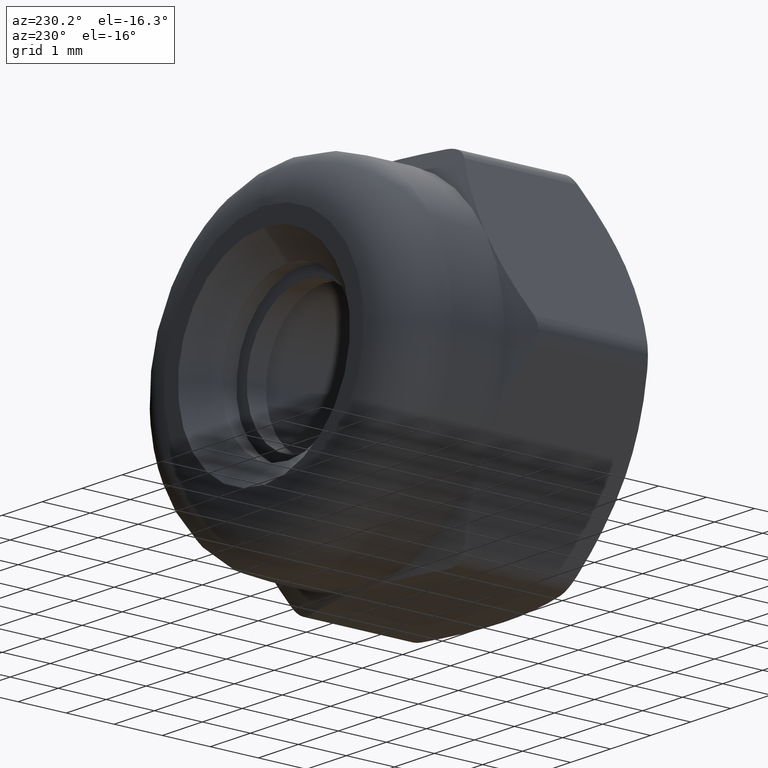
[diagram: clean part render]
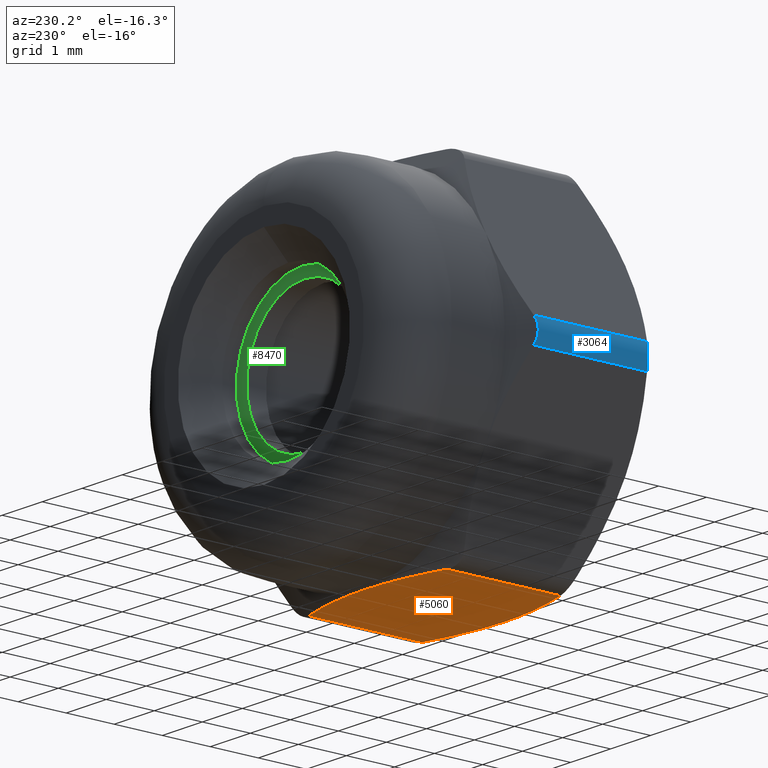
[diagram: same view with three faces highlighted in distinct colors, each labeled with its STEP entity id]
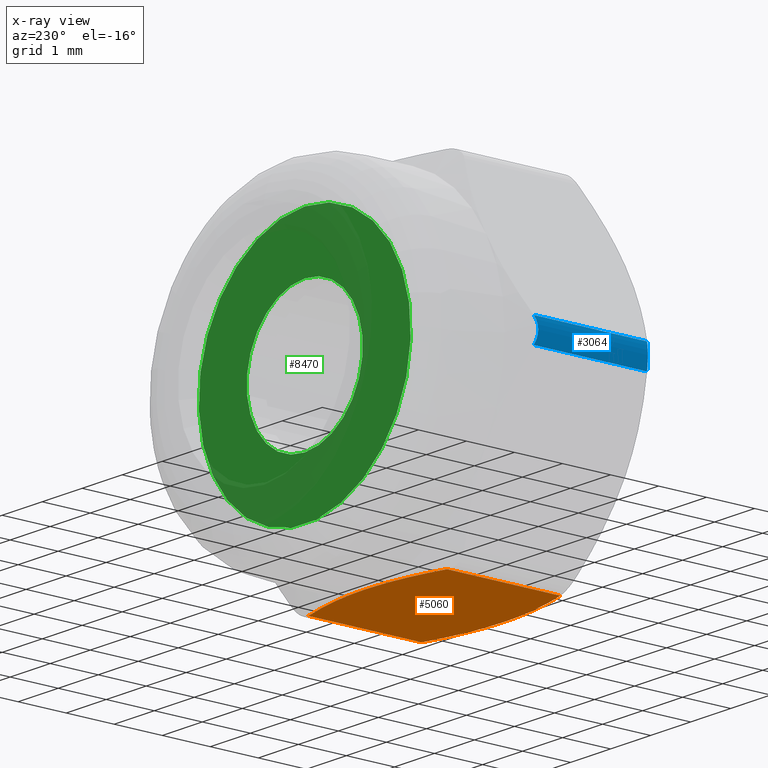
[diagram: x-ray of the same camera — body ghosted, the three highlighted faces saturated]
A machine part, auxiliary view with three faces highlighted in distinct colors.
The next image is the same camera in x-ray (body ghosted, the three faces saturated) — at least one of them is partly hidden behind the body in this view.
Their STEP definitions:

[orange] entity #5060 — the highlighted planar face has unit normal (0, -0, 1).
#16 = VECTOR ( 'NONE', #1610, 1000.000000000000000 ) ;
#62 = FACE_OUTER_BOUND ( 'NONE', #15075, .T. ) ;
#146 = VERTEX_POINT ( 'NONE', #7037 ) ;
#253 = ORIENTED_EDGE ( 'NONE', *, *, #522, .T. ) ;
#427 = CARTESIAN_POINT ( 'NONE',  ( 1.732050807568886297, 1.449999999999999956, -3.499999999999997780 ) ) ;
#522 = EDGE_CURVE ( 'NONE', #2744, #14837, #6635, .T. ) ;
#550 = CARTESIAN_POINT ( 'NONE',  ( 1.732050807568883410, -1.179916774697780779, -3.499999999999997780 ) ) ;
#1561 = B_SPLINE_CURVE_WITH_KNOTS ( 'NONE', 3,
 ( #13240, #5974, #3683, #14471, #4800, #8451 ),
 .UNSPECIFIED., .F., .F.,
 ( 4, 2, 4 ),
 ( 0.003893843636145335324, 0.004771886184709208355, 0.005649928733273081385 ),
 .UNSPECIFIED. ) ;
#1610 = DIRECTION ( 'NONE',  ( 0.000000000000000000, -1.000000000000000000, 0.000000000000000000 ) ) ;
#1994 = ORIENTED_EDGE ( 'NONE', *, *, #13333, .T. ) ;
#2048 = CARTESIAN_POINT ( 'NONE',  ( 1.732050807568883410, -1.179916774697780779, -3.499999999999997780 ) ) ;
#2092 = CARTESIAN_POINT ( 'NONE',  ( 1.452413815336378589, 1.262602219819400684, -3.499999999999997780 ) ) ;
#2391 = ORIENTED_EDGE ( 'NONE', *, *, #8789, .T. ) ;
#2631 = B_SPLINE_CURVE_WITH_KNOTS ( 'NONE', 3,
 ( #10388, #6689, #7920, #8014, #9159, #12844 ),
 .UNSPECIFIED., .F., .F.,
 ( 4, 2, 4 ),
 ( 0.01205306790077971535, 0.01293214004860088542, 0.01381121219642205550 ),
 .UNSPECIFIED. ) ;
#2744 = VERTEX_POINT ( 'NONE', #550 ) ;
#2956 = CARTESIAN_POINT ( 'NONE',  ( 0.5889775044330665121, 1.424624367612096876, -3.499999999999998224 ) ) ;
#3330 = CARTESIAN_POINT ( 'NONE',  ( 1.168569814788573913, 1.330529597243393258, -3.499999999999997780 ) ) ;
#3683 = CARTESIAN_POINT ( 'NONE',  ( -1.160929590594114824, 1.332090193559502866, -3.499999999999998224 ) ) ;
#3886 = CARTESIAN_POINT ( 'NONE',  ( -1.732050807568868755, 1.449999999999999956, -3.499999999999997780 ) ) ;
#4042 = VERTEX_POINT ( 'NONE', #10152 ) ;
#4611 = VERTEX_POINT ( 'NONE', #12935 ) ;
#4800 = CARTESIAN_POINT ( 'NONE',  ( -0.2930392331984196241, 1.450000000000000844, -3.499999999999997780 ) ) ;
#5060 = ADVANCED_FACE ( 'NONE', ( #62 ), #12188, .F. ) ;
#5401 = CARTESIAN_POINT ( 'NONE',  ( 0.000000000000000000, 1.449999999999999956, -3.500000000000000000 ) ) ;
#5616 = CARTESIAN_POINT ( 'NONE',  ( 1.452413815336378589, -1.262602219819400684, -3.499999999999998224 ) ) ;
#5974 = CARTESIAN_POINT ( 'NONE',  ( -1.448802245578631576, 1.263670119494017641, -3.499999999999998224 ) ) ;
#6108 = LINE ( 'NONE', #427, #16 ) ;
#6635 = B_SPLINE_CURVE_WITH_KNOTS ( 'NONE', 3,
 ( #2048, #5616, #6860, #9194, #7994, #12771 ),
 .UNSPECIFIED., .F., .F.,
 ( 4, 2, 4 ),
 ( 0.01030139614544786641, 0.01117723202311379088, 0.01205306790077971535 ),
 .UNSPECIFIED. ) ;
#6689 = CARTESIAN_POINT ( 'NONE',  ( -0.2930392331984202903, -1.450000000000001066, -3.499999999999998224 ) ) ;
#6860 = CARTESIAN_POINT ( 'NONE',  ( 1.168569814788574801, -1.330529597243394146, -3.499999999999998224 ) ) ;
#7037 = CARTESIAN_POINT ( 'NONE',  ( -1.732050807569855300, -1.179916774697493453, -3.499999999999997780 ) ) ;
#7093 = ORIENTED_EDGE ( 'NONE', *, *, #8216, .T. ) ;
#7228 = LINE ( 'NONE', #3886, #14461 ) ;
#7920 = CARTESIAN_POINT ( 'NONE',  ( -0.5837124141310827685, -1.425151664594819234, -3.499999999999998224 ) ) ;
#7994 = CARTESIAN_POINT ( 'NONE',  ( 0.2919604205809714914, -1.450000000000001066, -3.499999999999997780 ) ) ;
#8014 = CARTESIAN_POINT ( 'NONE',  ( -1.160929590594115046, -1.332090193559502866, -3.499999999999997780 ) ) ;
#8086 = VERTEX_POINT ( 'NONE', #11975 ) ;
#8216 = EDGE_CURVE ( 'NONE', #4611, #2744, #6108, .T. ) ;
#8451 = CARTESIAN_POINT ( 'NONE',  ( 0.000000000000000000, 1.449999999999999956, -3.500000000000000000 ) ) ;
#8789 = EDGE_CURVE ( 'NONE', #146, #4042, #7228, .T. ) ;
#9030 = CARTESIAN_POINT ( 'NONE',  ( 1.732050807568883410, 1.179916774697780779, -3.499999999999997780 ) ) ;
#9159 = CARTESIAN_POINT ( 'NONE',  ( -1.448802245578632020, -1.263670119494017419, -3.499999999999997780 ) ) ;
#9194 = CARTESIAN_POINT ( 'NONE',  ( 0.5889775044330658460, -1.424624367612096654, -3.499999999999997780 ) ) ;
#9864 = DIRECTION ( 'NONE',  ( -0.000000000000000000, 1.000000000000000000, -0.000000000000000000 ) ) ;
#10152 = CARTESIAN_POINT ( 'NONE',  ( -1.732050807569855744, 1.179916774697493231, -3.499999999999997780 ) ) ;
#10388 = CARTESIAN_POINT ( 'NONE',  ( 0.000000000000000000, -1.449999999999999956, -3.499999999999999556 ) ) ;
#10583 = CARTESIAN_POINT ( 'NONE',  ( 0.2919604205809721575, 1.450000000000001066, -3.499999999999998224 ) ) ;
#10736 = EDGE_CURVE ( 'NONE', #4042, #8086, #1561, .T. ) ;
#11073 = CARTESIAN_POINT ( 'NONE',  ( 2.020725942163698718, 1.449999999999999956, -3.499999999999997780 ) ) ;
#11975 = CARTESIAN_POINT ( 'NONE',  ( 0.000000000000000000, 1.449999999999999956, -3.500000000000000000 ) ) ;
#12188 = PLANE ( 'NONE',  #12512 ) ;
#12289 = B_SPLINE_CURVE_WITH_KNOTS ( 'NONE', 3,
 ( #5401, #10583, #2956, #3330, #2092, #9030 ),
 .UNSPECIFIED., .F., .F.,
 ( 4, 2, 4 ),
 ( 0.005649928733273081385, 0.006524738802111602377, 0.007399548870950123369 ),
 .UNSPECIFIED. ) ;
#12512 = AXIS2_PLACEMENT_3D ( 'NONE', #11073, #13422, #13252 ) ;
#12771 = CARTESIAN_POINT ( 'NONE',  ( 0.000000000000000000, -1.449999999999999956, -3.499999999999999556 ) ) ;
#12844 = CARTESIAN_POINT ( 'NONE',  ( -1.732050807569855300, -1.179916774697493453, -3.499999999999997780 ) ) ;
#12935 = CARTESIAN_POINT ( 'NONE',  ( 1.732050807568883410, 1.179916774697780779, -3.499999999999997780 ) ) ;
#13240 = CARTESIAN_POINT ( 'NONE',  ( -1.732050807569855744, 1.179916774697493231, -3.499999999999997780 ) ) ;
#13252 = DIRECTION ( 'NONE',  ( 1.000000000000000000, 0.000000000000000000, -0.000000000000000000 ) ) ;
#13333 = EDGE_CURVE ( 'NONE', #8086, #4611, #12289, .T. ) ;
#13422 = DIRECTION ( 'NONE',  ( 0.000000000000000000, -0.000000000000000000, 1.000000000000000000 ) ) ;
#13825 = CARTESIAN_POINT ( 'NONE',  ( 0.000000000000000000, -1.449999999999999956, -3.499999999999999556 ) ) ;
#13831 = ORIENTED_EDGE ( 'NONE', *, *, #10736, .T. ) ;
#13923 = EDGE_CURVE ( 'NONE', #14837, #146, #2631, .T. ) ;
#14461 = VECTOR ( 'NONE', #9864, 1000.000000000000000 ) ;
#14471 = CARTESIAN_POINT ( 'NONE',  ( -0.5837124141310822134, 1.425151664594819012, -3.499999999999997780 ) ) ;
#14837 = VERTEX_POINT ( 'NONE', #13825 ) ;
#15075 = EDGE_LOOP ( 'NONE', ( #15692, #2391, #13831, #1994, #7093, #253 ) ) ;
#15692 = ORIENTED_EDGE ( 'NONE', *, *, #13923, .T. ) ;

[blue] entity #3064 — the highlighted cylindrical surface (edge-blend (fillet) strip) has radius 0.5 mm, axis along (0, -1, 0).
#136 = CARTESIAN_POINT ( 'NONE',  ( -3.897114317029966468, -1.179916774697786330, -0.2500000000000001665 ) ) ;
#138 = B_SPLINE_CURVE_WITH_KNOTS ( 'NONE', 3,
 ( #7855, #1895, #12726, #10175, #4342, #3074 ),
 .UNSPECIFIED., .F., .F.,
 ( 4, 2, 4 ),
 ( 5.421010862427521568E-20, 0.0002642211017210701284, 0.0005284422034421401484 ),
 .UNSPECIFIED. ) ;
#380 = DIRECTION ( 'NONE',  ( -0.000000000000000000, 1.000000000000000000, -0.000000000000000000 ) ) ;
#684 = ORIENTED_EDGE ( 'NONE', *, *, #14688, .F. ) ;
#937 = CARTESIAN_POINT ( 'NONE',  ( -3.964019881333852524, -1.140646539615123523, 0.08875208853831384470 ) ) ;
#1181 = VERTEX_POINT ( 'NONE', #9838 ) ;
#1421 = ORIENTED_EDGE ( 'NONE', *, *, #4131, .F. ) ;
#1895 = CARTESIAN_POINT ( 'NONE',  ( -3.939904777791623847, 1.154611479666615148, -0.1758847478815271370 ) ) ;
#1987 = CYLINDRICAL_SURFACE ( 'NONE', #14449, 0.5000000000000000000 ) ;
#3064 = ADVANCED_FACE ( 'NONE', ( #11863 ), #1987, .T. ) ;
#3074 = CARTESIAN_POINT ( 'NONE',  ( -3.897114317029966912, 1.179916774697785886, 0.2499999999999995282 ) ) ;
#3285 = CARTESIAN_POINT ( 'NONE',  ( -3.939904777791623847, -1.154611479666615148, 0.1758847478815268595 ) ) ;
#4131 = EDGE_CURVE ( 'NONE', #4501, #1181, #138, .T. ) ;
#4342 = CARTESIAN_POINT ( 'NONE',  ( -3.939921686799172207, 1.154601480068174535, 0.1758554606213720284 ) ) ;
#4443 = EDGE_LOOP ( 'NONE', ( #1421, #6876, #14520, #684 ) ) ;
#4501 = VERTEX_POINT ( 'NONE', #5730 ) ;
#5246 = B_SPLINE_CURVE_WITH_KNOTS ( 'NONE', 3,
 ( #5628, #3285, #937, #5841, #14328, #12989 ),
 .UNSPECIFIED., .F., .F.,
 ( 4, 2, 4 ),
 ( 5.421010862427522170E-20, 0.0002642211017210703452, 0.0005284422034421405821 ),
 .UNSPECIFIED. ) ;
#5450 = CARTESIAN_POINT ( 'NONE',  ( -3.897114317029966468, -1.179916774697786330, 0.2500000000000000555 ) ) ;
#5628 = CARTESIAN_POINT ( 'NONE',  ( -3.897114317029966468, -1.179916774697786330, 0.2500000000000000555 ) ) ;
#5730 = CARTESIAN_POINT ( 'NONE',  ( -3.897114317029966468, 1.179916774697786330, -0.2500000000000002220 ) ) ;
#5841 = CARTESIAN_POINT ( 'NONE',  ( -3.964182922678288978, -1.140551555199826206, -0.08782876490633985400 ) ) ;
#6175 = VERTEX_POINT ( 'NONE', #136 ) ;
#6864 = DIRECTION ( 'NONE',  ( 0.000000000000000000, -1.000000000000000000, 0.000000000000000000 ) ) ;
#6876 = ORIENTED_EDGE ( 'NONE', *, *, #11830, .F. ) ;
#7626 = VECTOR ( 'NONE', #6864, 1000.000000000000000 ) ;
#7855 = CARTESIAN_POINT ( 'NONE',  ( -3.897114317029966468, 1.179916774697786330, -0.2500000000000002220 ) ) ;
#8688 = VECTOR ( 'NONE', #380, 1000.000000000000000 ) ;
#9070 = LINE ( 'NONE', #13717, #8688 ) ;
#9838 = CARTESIAN_POINT ( 'NONE',  ( -3.897114317029966912, 1.179916774697785886, 0.2499999999999995282 ) ) ;
#10175 = CARTESIAN_POINT ( 'NONE',  ( -3.964182922678288090, 1.140551555199826206, 0.08782876490633934052 ) ) ;
#11325 = DIRECTION ( 'NONE',  ( 0.000000000000000000, 0.000000000000000000, -1.000000000000000000 ) ) ;
#11485 = DIRECTION ( 'NONE',  ( 0.000000000000000000, -1.000000000000000000, 0.000000000000000000 ) ) ;
#11547 = EDGE_CURVE ( 'NONE', #13598, #6175, #5246, .T. ) ;
#11830 = EDGE_CURVE ( 'NONE', #6175, #4501, #9070, .T. ) ;
#11863 = FACE_OUTER_BOUND ( 'NONE', #4443, .T. ) ;
#12648 = CARTESIAN_POINT ( 'NONE',  ( -3.464101615137747281, 1.449999999999999956, -5.421010862427522170E-17 ) ) ;
#12726 = CARTESIAN_POINT ( 'NONE',  ( -3.964019881333852524, 1.140646539615123523, -0.08875208853831416389 ) ) ;
#12989 = CARTESIAN_POINT ( 'NONE',  ( -3.897114317029966468, -1.179916774697786330, -0.2500000000000001665 ) ) ;
#13598 = VERTEX_POINT ( 'NONE', #5450 ) ;
#13717 = CARTESIAN_POINT ( 'NONE',  ( -3.897114317029966468, 1.449999999999999956, -0.2500000000000006661 ) ) ;
#14089 = LINE ( 'NONE', #15291, #7626 ) ;
#14328 = CARTESIAN_POINT ( 'NONE',  ( -3.939921686799170431, -1.154601480068174535, -0.1758554606213721672 ) ) ;
#14449 = AXIS2_PLACEMENT_3D ( 'NONE', #12648, #11485, #11325 ) ;
#14520 = ORIENTED_EDGE ( 'NONE', *, *, #11547, .F. ) ;
#14688 = EDGE_CURVE ( 'NONE', #1181, #13598, #14089, .T. ) ;
#15291 = CARTESIAN_POINT ( 'NONE',  ( -3.897114317029966468, 1.449999999999999956, 0.2500000000000001110 ) ) ;

[green] entity #8470 — the highlighted planar face has unit normal (0, 1, 0).
#455 = DIRECTION ( 'NONE',  ( 0.000000000000000000, 0.000000000000000000, 1.000000000000000000 ) ) ;
#1089 = CARTESIAN_POINT ( 'NONE',  ( 0.000000000000000000, 2.699999999999999289, 2.649999999999999467 ) ) ;
#1576 = DIRECTION ( 'NONE',  ( 0.000000000000000000, 0.000000000000000000, 1.000000000000000000 ) ) ;
#1640 = ORIENTED_EDGE ( 'NONE', *, *, #7044, .F. ) ;
#3049 = CARTESIAN_POINT ( 'NONE',  ( 0.000000000000000000, 2.699999999999999734, 0.000000000000000000 ) ) ;
#3175 = AXIS2_PLACEMENT_3D ( 'NONE', #3049, #11548, #10507 ) ;
#4195 = CARTESIAN_POINT ( 'NONE',  ( 0.000000000000000000, 2.699999999999999289, 0.000000000000000000 ) ) ;
#4796 = ORIENTED_EDGE ( 'NONE', *, *, #7006, .T. ) ;
#5158 = FACE_BOUND ( 'NONE', #14405, .T. ) ;
#6468 = VERTEX_POINT ( 'NONE', #7026 ) ;
#7006 = EDGE_CURVE ( 'NONE', #13873, #13873, #14865, .T. ) ;
#7026 = CARTESIAN_POINT ( 'NONE',  ( 0.000000000000000000, 2.699999999999999289, 1.449999999999997957 ) ) ;
#7044 = EDGE_CURVE ( 'NONE', #6468, #6468, #14301, .T. ) ;
#7226 = AXIS2_PLACEMENT_3D ( 'NONE', #4195, #14969, #455 ) ;
#8470 = ADVANCED_FACE ( 'NONE', ( #5158, #15246 ), #10301, .T. ) ;
#8886 = CARTESIAN_POINT ( 'NONE',  ( 0.000000000000000000, 2.699999999999999289, 0.000000000000000000 ) ) ;
#9346 = AXIS2_PLACEMENT_3D ( 'NONE', #8886, #13848, #1576 ) ;
#10301 = PLANE ( 'NONE',  #3175 ) ;
#10507 = DIRECTION ( 'NONE',  ( 0.000000000000000000, -0.000000000000000000, 1.000000000000000000 ) ) ;
#11548 = DIRECTION ( 'NONE',  ( 0.000000000000000000, 1.000000000000000000, 0.000000000000000000 ) ) ;
#13848 = DIRECTION ( 'NONE',  ( 0.000000000000000000, 1.000000000000000000, 0.000000000000000000 ) ) ;
#13873 = VERTEX_POINT ( 'NONE', #1089 ) ;
#14301 = CIRCLE ( 'NONE', #9346, 1.449999999999997957 ) ;
#14359 = EDGE_LOOP ( 'NONE', ( #4796 ) ) ;
#14405 = EDGE_LOOP ( 'NONE', ( #1640 ) ) ;
#14865 = CIRCLE ( 'NONE', #7226, 2.649999999999999467 ) ;
#14969 = DIRECTION ( 'NONE',  ( 0.000000000000000000, 1.000000000000000000, 0.000000000000000000 ) ) ;
#15246 = FACE_OUTER_BOUND ( 'NONE', #14359, .T. ) ;